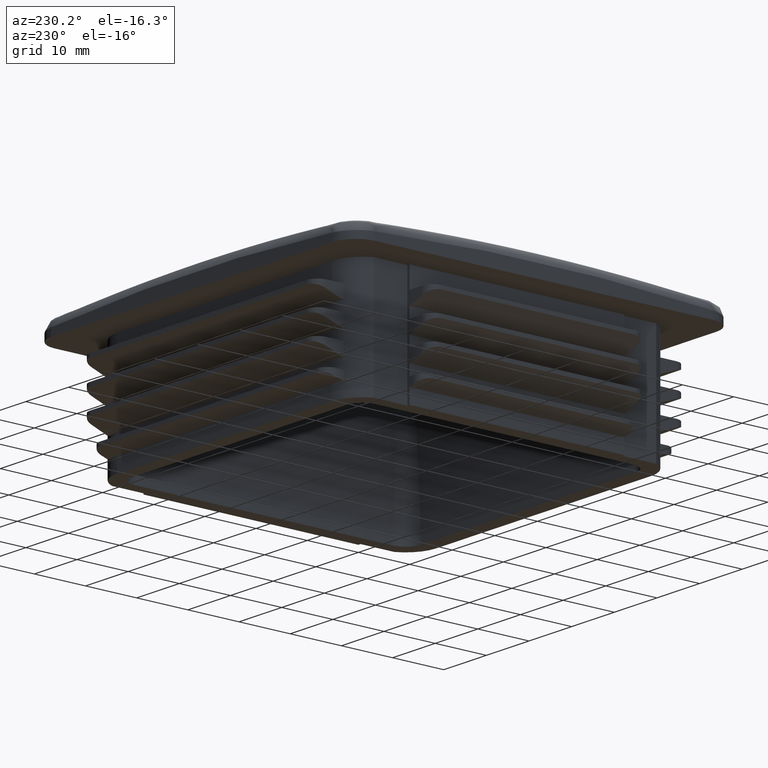
[diagram: clean part render]
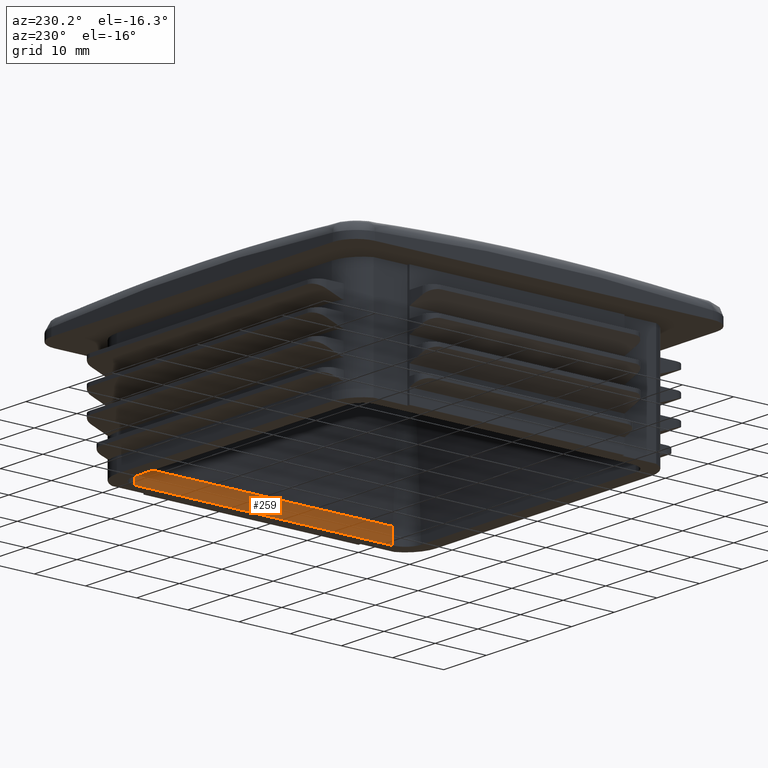
[diagram: same view with one face highlighted and labeled with its STEP entity id]
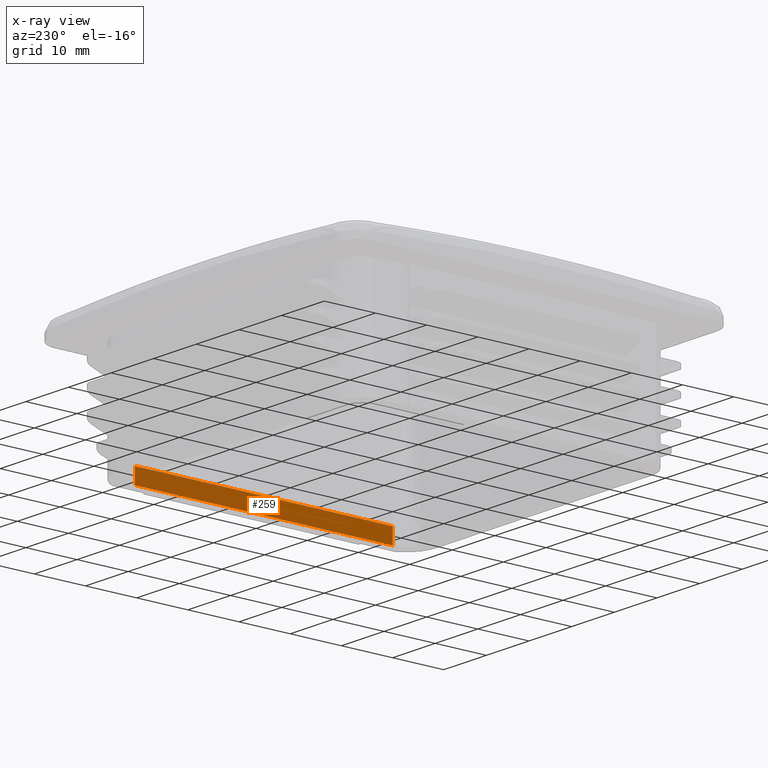
[diagram: x-ray of the same camera — body ghosted, the highlighted face saturated]
A machine part, auxiliary view. The second image highlights one B-rep face of the part: STEP entity #259.
The next image is the same camera in x-ray: the body ghosted, the highlighted face saturated — about 0% of this face is hidden behind the body in this view.
In plain terms, the highlighted planar face has unit normal (-1, 0, 0).
Its self-contained STEP definition (entity closure, byte-faithful):
#259 = ADVANCED_FACE( '', ( #706 ), #707, .T. );
#706 = FACE_OUTER_BOUND( '', #3252, .T. );
#707 = PLANE( '', #3253 );
#3252 = EDGE_LOOP( '', ( #5032, #5033, #5034, #5035 ) );
#3253 = AXIS2_PLACEMENT_3D( '', #5036, #5037, #5038 );
#5032 = ORIENTED_EDGE( '', *, *, #5541, .F. );
#5033 = ORIENTED_EDGE( '', *, *, #6109, .F. );
#5034 = ORIENTED_EDGE( '', *, *, #5605, .T. );
#5035 = ORIENTED_EDGE( '', *, *, #6110, .T. );
#5036 = CARTESIAN_POINT( '', ( 28.2000000000000, -25.2000000000000, 3.00000000000000 ) );
#5037 = DIRECTION( '', ( -1.00000000000000, 0.000000000000000, 0.000000000000000 ) );
#5038 = DIRECTION( '', ( 0.000000000000000, -1.00000000000000, 0.000000000000000 ) );
#5541 = EDGE_CURVE( '', #6217, #6219, #6220, .T. );
#5605 = EDGE_CURVE( '', #6333, #6335, #6337, .T. );
#6109 = EDGE_CURVE( '', #6333, #6217, #7166, .T. );
#6110 = EDGE_CURVE( '', #6335, #6219, #7167, .T. );
#6217 = VERTEX_POINT( '', #7324 );
#6219 = VERTEX_POINT( '', #7326 );
#6220 = LINE( '', #7327, #7328 );
#6333 = VERTEX_POINT( '', #7836 );
#6335 = VERTEX_POINT( '', #7839 );
#6337 = LINE( '', #7842, #7843 );
#7166 = LINE( '', #10321, #10322 );
#7167 = LINE( '', #10323, #10324 );
#7324 = CARTESIAN_POINT( '', ( 28.2000000000000, -25.2000000000000, 0.000000000000000 ) );
#7326 = CARTESIAN_POINT( '', ( 28.2000000000000, 25.2000000000000, 0.000000000000000 ) );
#7327 = CARTESIAN_POINT( '', ( 28.2000000000000, -25.2000000000000, 0.000000000000000 ) );
#7328 = VECTOR( '', #10571, 1000.00000000000 );
#7836 = CARTESIAN_POINT( '', ( 28.2000000000000, -25.2000000000000, 3.00000000000000 ) );
#7839 = CARTESIAN_POINT( '', ( 28.2000000000000, 25.2000000000000, 3.00000000000000 ) );
#7842 = CARTESIAN_POINT( '', ( 28.2000000000000, -25.2000000000000, 3.00000000000000 ) );
#7843 = VECTOR( '', #10644, 1000.00000000000 );
#10321 = CARTESIAN_POINT( '', ( 28.2000000000000, -25.2000000000000, 3.00000000000000 ) );
#10322 = VECTOR( '', #11215, 1000.00000000000 );
#10323 = CARTESIAN_POINT( '', ( 28.2000000000000, 25.2000000000000, 3.00000000000000 ) );
#10324 = VECTOR( '', #11216, 1000.00000000000 );
#10571 = DIRECTION( '', ( 0.000000000000000, 1.00000000000000, 0.000000000000000 ) );
#10644 = DIRECTION( '', ( 0.000000000000000, 1.00000000000000, 0.000000000000000 ) );
#11215 = DIRECTION( '', ( 0.000000000000000, 0.000000000000000, -1.00000000000000 ) );
#11216 = DIRECTION( '', ( 0.000000000000000, 0.000000000000000, -1.00000000000000 ) );